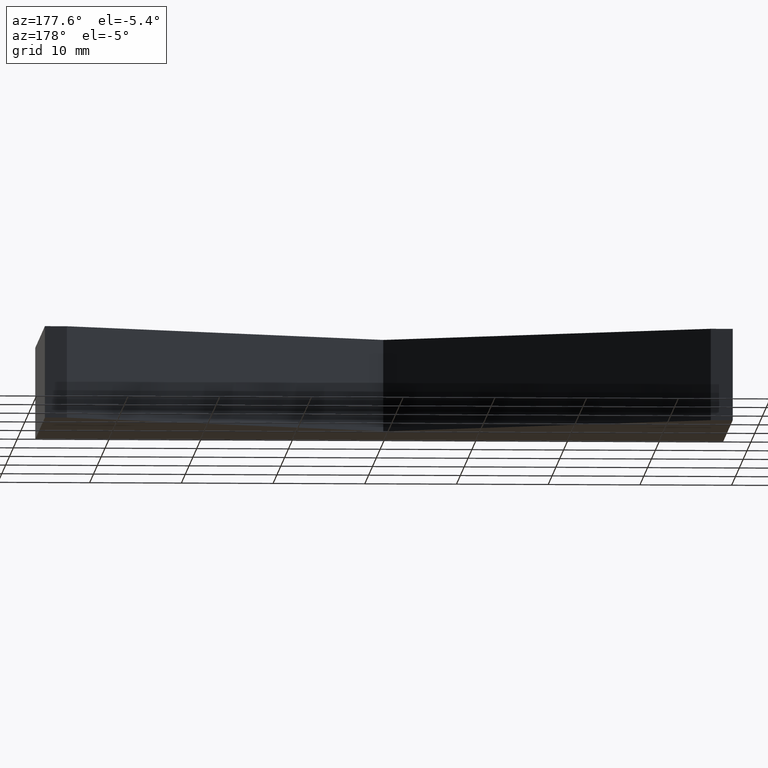
[diagram: clean part render]
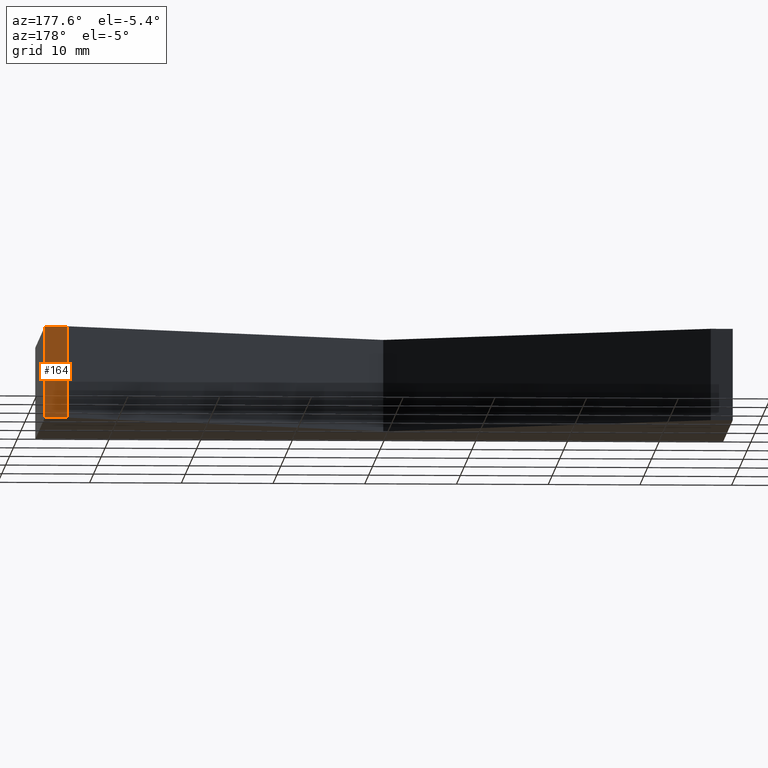
[diagram: same view with one face highlighted and labeled with its STEP entity id]
A machine part, auxiliary view. The second image highlights one B-rep face of the part: STEP entity #164.
In plain terms, the highlighted planar face has unit normal (0, 1, 0).
Its self-contained STEP definition (entity closure, byte-faithful):
#18=FACE_OUTER_BOUND('',#27,.T.);
#27=EDGE_LOOP('',(#122,#123,#124,#125));
#37=LINE('',#254,#58);
#42=LINE('',#264,#63);
#44=LINE('',#268,#65);
#45=LINE('',#269,#66);
#58=VECTOR('',#210,10.);
#63=VECTOR('',#217,10.);
#65=VECTOR('',#221,10.);
#66=VECTOR('',#222,10.);
#79=VERTEX_POINT('',#251);
#80=VERTEX_POINT('',#253);
#84=VERTEX_POINT('',#262);
#85=VERTEX_POINT('',#267);
#93=EDGE_CURVE('',#80,#79,#37,.T.);
#98=EDGE_CURVE('',#79,#84,#42,.T.);
#100=EDGE_CURVE('',#84,#85,#44,.T.);
#101=EDGE_CURVE('',#80,#85,#45,.T.);
#122=ORIENTED_EDGE('',*,*,#100,.T.);
#123=ORIENTED_EDGE('',*,*,#101,.F.);
#124=ORIENTED_EDGE('',*,*,#93,.T.);
#125=ORIENTED_EDGE('',*,*,#98,.T.);
#155=PLANE('',#196);
#164=ADVANCED_FACE('',(#18),#155,.T.);
#196=AXIS2_PLACEMENT_3D('',#266,#219,#220);
#210=DIRECTION('',(-1.,0.,0.));
#217=DIRECTION('',(0.,0.,1.));
#219=DIRECTION('center_axis',(0.,1.,0.));
#220=DIRECTION('ref_axis',(0.,0.,1.));
#221=DIRECTION('',(1.,0.,0.));
#222=DIRECTION('',(0.,0.,1.));
#251=CARTESIAN_POINT('',(35.1,12.5,-5.));
#253=CARTESIAN_POINT('',(37.5,12.5,-5.));
#254=CARTESIAN_POINT('',(37.5,12.5,-5.));
#262=CARTESIAN_POINT('',(35.1,12.5,5.));
#264=CARTESIAN_POINT('',(35.1,12.5,0.));
#266=CARTESIAN_POINT('Origin',(35.1,12.5,0.));
#267=CARTESIAN_POINT('',(37.5,12.5,5.));
#268=CARTESIAN_POINT('',(37.5,12.5,5.));
#269=CARTESIAN_POINT('',(37.5,12.5,0.));